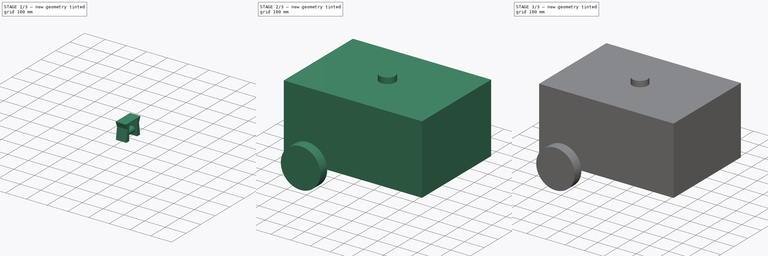
[diagram: build sequence overview — one tinted view per stage of 3, left to right]
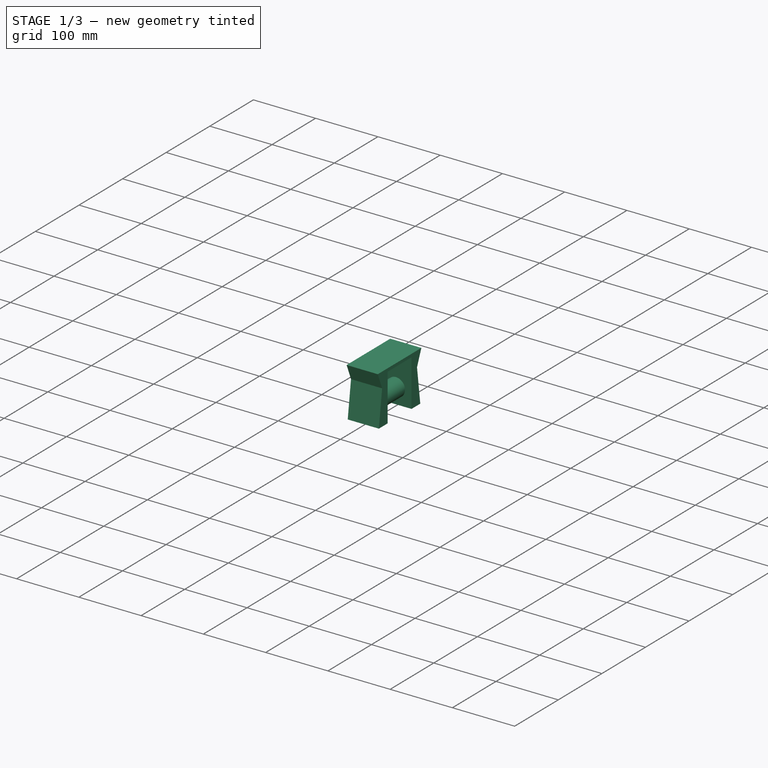
[diagram: stage 1 of 3 — iso view after this stage's code; geometry added in this stage tinted green]
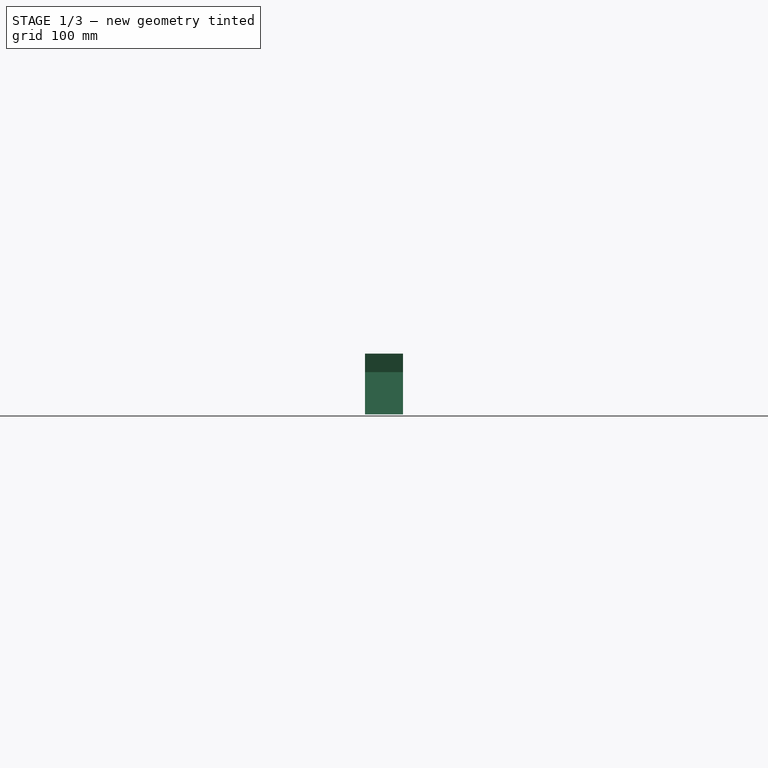
[diagram: stage 1 of 3 — front view after this stage's code; geometry added in this stage tinted green]
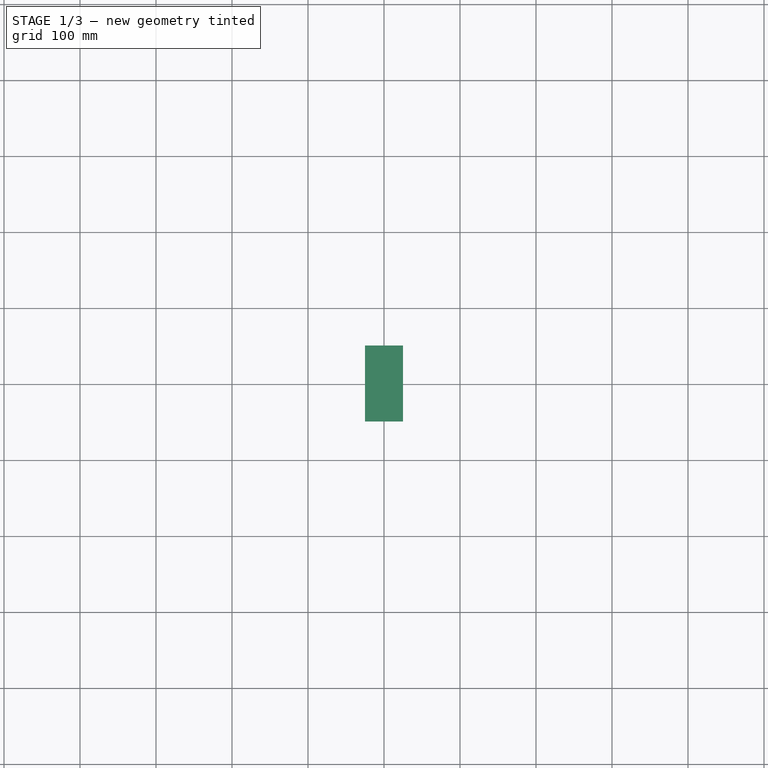
[diagram: stage 1 of 3 — top view after this stage's code; geometry added in this stage tinted green]
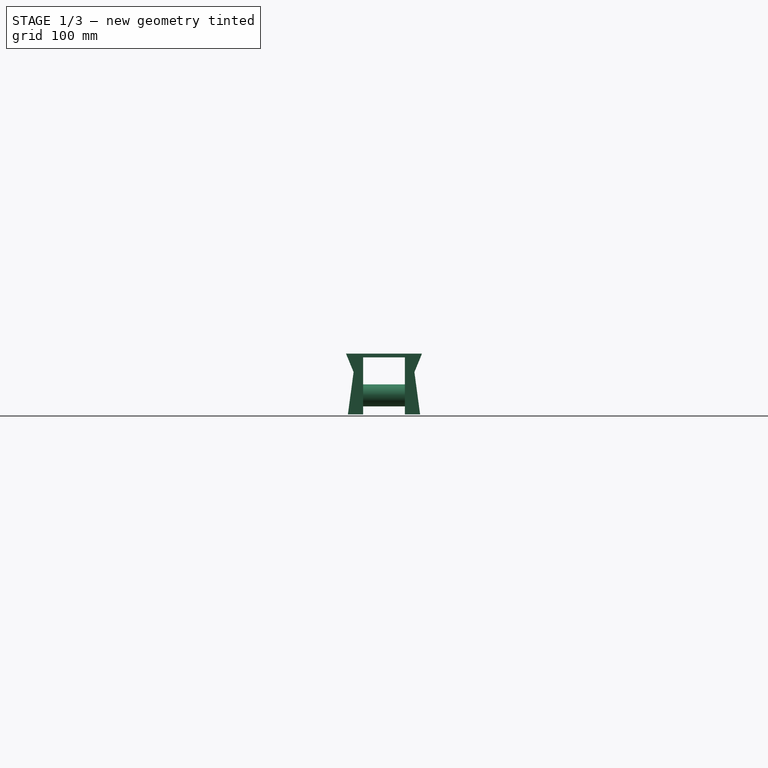
[diagram: stage 1 of 3 — right view after this stage's code; geometry added in this stage tinted green]
FCSTD DOCUMENT  (FreeCAD 0.19R24415 (Git))
Label: platypous
License: All rights reserved
LicenseURL: http://en.wikipedia.org/wiki/All_rights_reserved
objects: PartDesign::CoordinateSystem×8, Sketcher::SketchObject×6, PartDesign::Pad×6, App::Part×4, PartDesign::Body×3, App::DocumentObjectGroup×3, App::Link×3, PartDesign::Mirrored×1, App::FeaturePython×1
note: 30 computed .brp shape members not serialized (recipe doc carries the construction recipe); baked Part::Feature solids carry a one-line shape summary decoded from their .brp

FEATURE [PartDesign::Body] Body001  label="Wheel-body"
  Group = -> [Sketch003,Pad003]
  Origin = -> Origin003
  Tip = -> Pad003
FEATURE [PartDesign::CoordinateSystem] LCS_0
  AttacherType = Attacher::AttachEngine3D
  MapMode = 2
  Support = -> [X_Axis004]
FEATURE [PartDesign::CoordinateSystem] LCS_0001
  AttacherType = Attacher::AttachEngine3D
  MapMode = 2
  Support = -> [X_Axis005]
FEATURE [Sketcher::SketchObject] Sketch004
  FullyConstrained = true
  MapMode = 5
  Placement = pos=(0,0,0) rot=(0.57735,0.57735,0.57735;2.0944rad)
  Support = -> [YZ_Plane005]
  sketch-geometry (10):
    g0: LineSegment StartX=-50 StartY=42.5 StartZ=0 EndX=50 EndY=42.5 EndZ=0
    g1: LineSegment StartX=27.5 StartY=-37.5 StartZ=0 EndX=47.5 EndY=-37.5 EndZ=0
    g2: LineSegment StartX=27.5 StartY=-37.5 StartZ=0 EndX=27.5 EndY=37.5 EndZ=0
    g3: LineSegment StartX=27.5 StartY=37.5 StartZ=0 EndX=-27.5 EndY=37.5 EndZ=0
    g4: LineSegment StartX=-27.5 StartY=37.5 StartZ=0 EndX=-27.5 EndY=-37.5 EndZ=0
    g5: LineSegment StartX=50 StartY=42.5 StartZ=0 EndX=40 EndY=18.1465 EndZ=0
    g6: LineSegment StartX=40 StartY=18.1465 StartZ=0 EndX=47.5 EndY=-37.5 EndZ=0
    g7: LineSegment StartX=-50 StartY=42.5 StartZ=0 EndX=-40 EndY=18.1465 EndZ=0
    g8: LineSegment StartX=-40 StartY=18.1465 StartZ=0 EndX=-47.5 EndY=-37.5 EndZ=0
    g9: LineSegment StartX=-47.5 StartY=-37.5 StartZ=0 EndX=-27.5 EndY=-37.5 EndZ=0
  constraints (28):
    c: Horizontal(g1)
    c: DistanceY(g1,g0) = 80
    c: Coincident(g1,g2)
    c: Vertical(g2)
    c: Coincident(g2,g3)
    c: Horizontal(g3)
    c: Coincident(g3,g4)
    c: Vertical(g4)
    c: Equal(g4,g2)
    c: DistanceY(g4,g4) = 75
    c: DistanceX(g3,g3) = 55
    c: Coincident(g5,g0)
    c: Coincident(g6,g5)
    c: Coincident(g6,g1)
    c: Coincident(g0,g7)
    c: Coincident(g7,g8)
    c: Coincident(g8,g9)
    c: Coincident(g9,g4)
    c: Horizontal(g9)
    c: Equal(g9,g1)
    c: Angle(g7,g8) = 2.61799
    c: Angle(g6,g5) = 2.61799
    c: Symmetric(g2,g4,g-1)
    c: DistanceX(g0,g0) = 100
    c: DistanceX(g1,g1) = 20
    c: Symmetric(g0,g0,g-2)
    c: Equal(g8,g6)
    c: DistanceX(g7,g-1) = 40
FEATURE [PartDesign::Pad] Pad004
  Direction = (1,1,1)
  Length = 50
  Length2 = 100
  Midplane = true
  Placement = pos=(0,0,0) rot=(0.57735,0.57735,0.57735;2.0944rad)
  Profile = -> Sketch004
  Refine = true
  Type = 0
FEATURE [Sketcher::SketchObject] Sketch005
  ExternalGeometry = -> [Pad004]
  FullyConstrained = true
  MapMode = 5
  Placement = pos=(1.22e-14,27.5,-9.2e-15) rot=(-0.57735,-0.57735,0.57735;4.18879rad)
  Support = -> [Pad004]
  sketch-geometry (1):
    g0: Circle CenterX=12.5 CenterY=0 CenterZ=0 NormalX=0 NormalY=0 NormalZ=1 AngleXU=0 Radius=14.5
  constraints (3):
    c: PointOnObject(g0,g-1)
    c: Radius(g0) = 14.5
    c: Distance(g0,g-3) = 50
FEATURE [PartDesign::Pad] Pad005
  BaseFeature = -> Pad004
  Direction = (1,1,1)
  Length = 10
  Length2 = 100
  Placement = pos=(0,0,0) rot=(0.57735,0.57735,0.57735;2.0944rad)
  Profile = -> Sketch005
  Refine = true
  Type = 2
FEATURE [PartDesign::Body] Wheel_holder
  Group = -> [LCS_0001,Sketch004,Pad004,Sketch005,Pad005]
  Origin = -> Origin005
  Tip = -> Pad005
FEATURE [PartDesign::CoordinateSystem] body_connection  label="body-connection"
  AttacherType = Attacher::AttachEngine3D
  MapMode = 45
  Placement = pos=(-3.69e-14,2.36e-14,42.5) rot=(0,0,1;0rad)
  Support = -> [Pad005]
FEATURE [PartDesign::CoordinateSystem] LCS_Origin
  AttacherType = Attacher::AttachEngine3D
  MapMode = 2
  Support = -> [X_Axis006]
FEATURE [App::FeaturePython] Variables  # WARN: FeaturePython — macro-defined, semantics opaque (R4)
  Type = App::PropertyContainer
FEATURE [App::DocumentObjectGroup] Constraints
FEATURE [App::DocumentObjectGroup] Configurations
FEATURE [PartDesign::CoordinateSystem] LCS_1
  AttacherType = Attacher::AttachEngine3D
  AttachmentOffset = pos=(0,0,0) rot=(0,0,-1;1.5708rad)
  MapMode = 45
  Placement = pos=(0,-1.17e-14,0) rot=(0,0,1;0rad)
  Support = -> [Mirrored]
FEATURE [PartDesign::CoordinateSystem] Wheel_connection  label="Wheel-connection"
  AttacherType = Attacher::AttachEngine3D
  AttachmentOffset = pos=(0,-200,0) rot=(0,0,-1;1.5708rad)
  MapMode = 45
  Placement = pos=(200,-5.61e-14,0) rot=(0,0,1;0rad)
  Support = -> [Mirrored]
FEATURE [App::Part] Part  label="Platy-part"
  Group = -> [Body,LCS_1,Wheel_connection]
  Origin = -> Origin001
FEATURE [App::Link] Platy_part  label="Platy-part001"
  AssemblyType = Part::Link
  AttachedBy = #LCS_1
  AttachedTo = Parent Assembly#LCS_Origin
  LinkPlacement = pos=(0,1.17e-14,0) rot=(0,0,1;0rad)
  LinkedObject = -> Part
  Placement = pos=(0,1.17e-14,0) rot=(0,0,1;0rad)
  SolverId = Asm4EE
  expr: Placement = LCS_Origin.Placement * AttachmentOffset * LCS_1.Placement ^ -1
FEATURE [PartDesign::CoordinateSystem] wheel_center  label="wheel-center"
  AttacherType = Attacher::AttachEngine3D
  AttachmentOffset = pos=(0,0,0) rot=(-0.707107,0,-0.707107;3.14159rad)
  MapMode = 45
  Placement = pos=(7.01e-14,0,-5e-16) rot=(0,0,1;0rad)
  Support = -> [Pad003]
FEATURE [App::Part] Part001  label="Wheel"
  Group = -> [Body001,wheel_center]
  Origin = -> Origin002
FEATURE [PartDesign::CoordinateSystem] wheel_connection  label="wheel-connection"
  AttacherType = Attacher::AttachEngine3D
  AttachmentOffset = pos=(0,0,0) rot=(0,0.707107,0.707107;3.14159rad)
  MapMode = 45
  Placement = pos=(-1e-15,-9.3e-15,-12.5) rot=(0,0,1;0rad)
  Support = -> [Pad005]
FEATURE [App::Part] Wheel_Holder
  Group = -> [LCS_0,Wheel_holder,body_connection,wheel_connection]
  Origin = -> Origin004
FEATURE [App::DocumentObjectGroup] Parts
  Group = -> [Part,Part001,Wheel_Holder]
FEATURE [App::Link] Wheel_Holder001
  AssemblyType = Part::Link
  AttachedBy = #body_connection
  AttachedTo = Platy_part#Wheel_connection
  LinkPlacement = pos=(200,-6.81e-14,-42.5) rot=(0,0,1;0rad)
  LinkedObject = -> Wheel_Holder
  Placement = pos=(200,-6.81e-14,-42.5) rot=(0,0,1;0rad)
  SolverId = Asm4EE
  expr: Placement = Platy_part.Placement * Wheel_connection.Placement * AttachmentOffset * body_connection.Placement ^ -1
FEATURE [App::Link] Wheel  label="Wheel001"
  AssemblyType = Part::Link
  AttachedBy = #wheel_center
  AttachedTo = Wheel_Holder001#wheel_connection
  LinkPlacement = pos=(200,-8.85e-14,-55) rot=(0,0,1;0rad)
  LinkedObject = -> Part001
  Placement = pos=(200,-8.85e-14,-55) rot=(0,0,1;0rad)
  SolverId = Asm4EE
  expr: Placement = Wheel_Holder001.Placement * wheel_connection.Placement * AttachmentOffset * wheel_center.Placement ^ -1
FEATURE [App::Part] Assembly
  AssemblyType = Part::Link
  Group = -> [LCS_Origin,Variables,Constraints,Configurations,Platy_part,Wheel_Holder001,Wheel]
  Origin = -> Origin006
  Type = Assembly
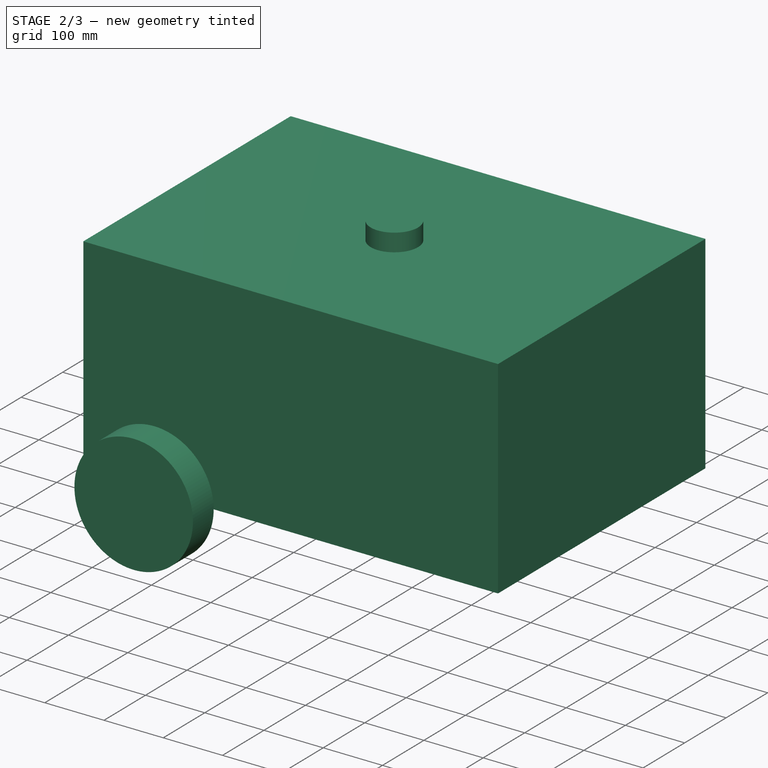
[diagram: stage 2 of 3 — iso view after this stage's code; geometry added in this stage tinted green]
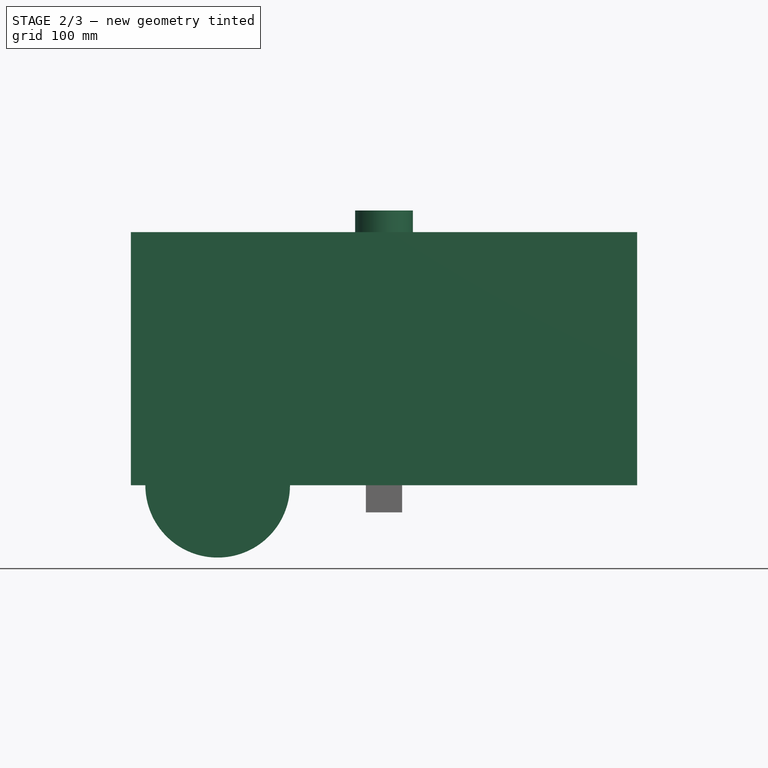
[diagram: stage 2 of 3 — front view after this stage's code; geometry added in this stage tinted green]
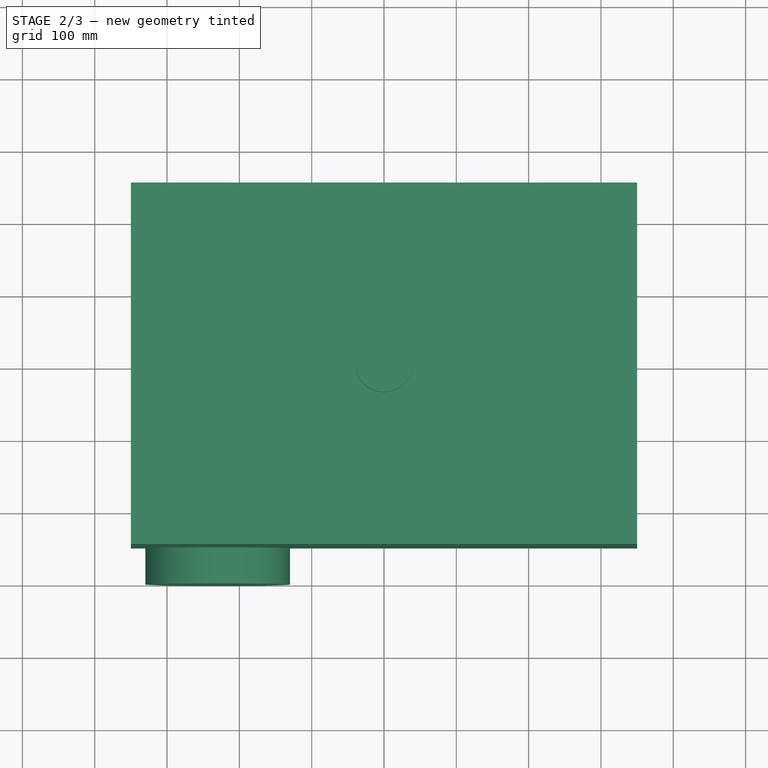
[diagram: stage 2 of 3 — top view after this stage's code; geometry added in this stage tinted green]
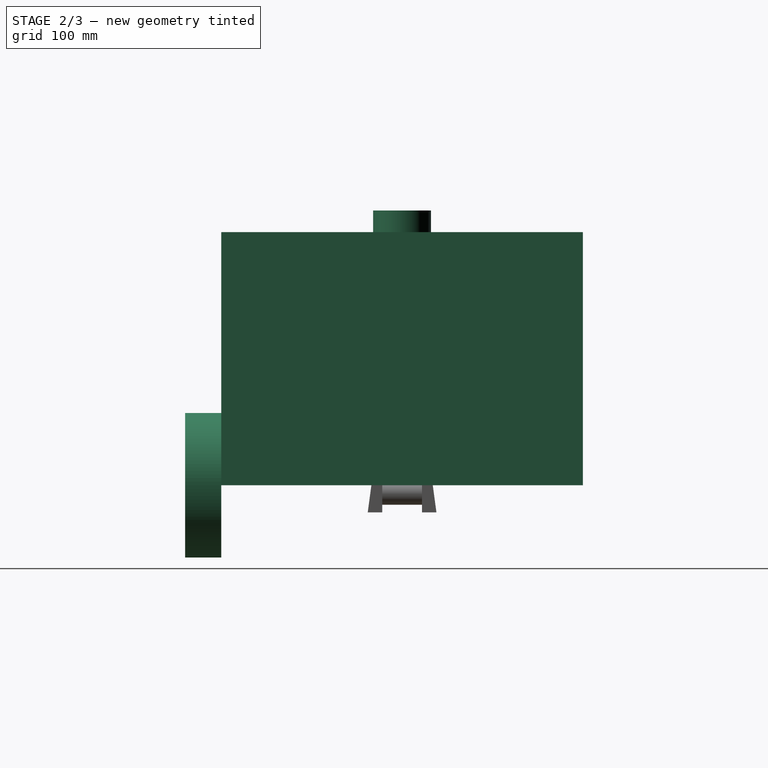
[diagram: stage 2 of 3 — right view after this stage's code; geometry added in this stage tinted green]
FEATURE [Sketcher::SketchObject] Sketch
  FullyConstrained = true
  MapMode = 5
  Support = -> [XY_Plane]
  sketch-geometry (4):
    g0: LineSegment StartX=-350 StartY=250 StartZ=0 EndX=350 EndY=250 EndZ=0
    g1: LineSegment StartX=350 StartY=250 StartZ=0 EndX=350 EndY=-250 EndZ=0
    g2: LineSegment StartX=350 StartY=-250 StartZ=0 EndX=-350 EndY=-250 EndZ=0
    g3: LineSegment StartX=-350 StartY=-250 StartZ=0 EndX=-350 EndY=250 EndZ=0
  constraints (11):
    c: Coincident(g0,g1)
    c: Coincident(g1,g2)
    c: Coincident(g2,g3)
    c: Coincident(g3,g0)
    c: Horizontal(g0)
    c: Horizontal(g2)
    c: Vertical(g1)
    c: Vertical(g3)
    c: Symmetric(g0,g1,g-1)
    c: DistanceX(g2,g2) = 700
    c: DistanceY(g1,g1) = 500
FEATURE [PartDesign::Pad] Pad
  Direction = (1,1,1)
  Length = 350
  Length2 = 100
  Profile = -> Sketch
  Refine = true
  Type = 0
FEATURE [Sketcher::SketchObject] Sketch001
  FullyConstrained = true
  MapMode = 5
  Placement = pos=(0,0,350) rot=(0,0,1;0rad)
  Support = -> [Pad]
  sketch-geometry (1):
    g0: Circle CenterX=0 CenterY=0 CenterZ=0 NormalX=0 NormalY=0 NormalZ=1 AngleXU=0 Radius=40
  constraints (2):
    c: Coincident(g0,g-1)
    c: Radius(g0) = 40
FEATURE [PartDesign::Pad] Pad001
  BaseFeature = -> Pad
  Direction = (1,1,1)
  Length = 30
  Length2 = 100
  Profile = -> Sketch001
  Refine = true
  Type = 0
FEATURE [Sketcher::SketchObject] Sketch002
  ExternalGeometry = -> [Pad001]
  FullyConstrained = true
  MapMode = 5
  Placement = pos=(0,-250,0) rot=(1,0,0;1.5708rad)
  Support = -> [Pad001]
  sketch-geometry (1):
    g0: Circle CenterX=-230 CenterY=0 CenterZ=0 NormalX=0 NormalY=0 NormalZ=1 AngleXU=0 Radius=100
  constraints (3):
    c: PointOnObject(g0,g-3)
    c: Radius(g0) = 100
    c: DistanceX(g0,g-1) = 230
FEATURE [PartDesign::Pad] Pad002
  BaseFeature = -> Pad001
  Direction = (1,1,1)
  Length = 50
  Length2 = 100
  Profile = -> Sketch002
  Refine = true
  Type = 0
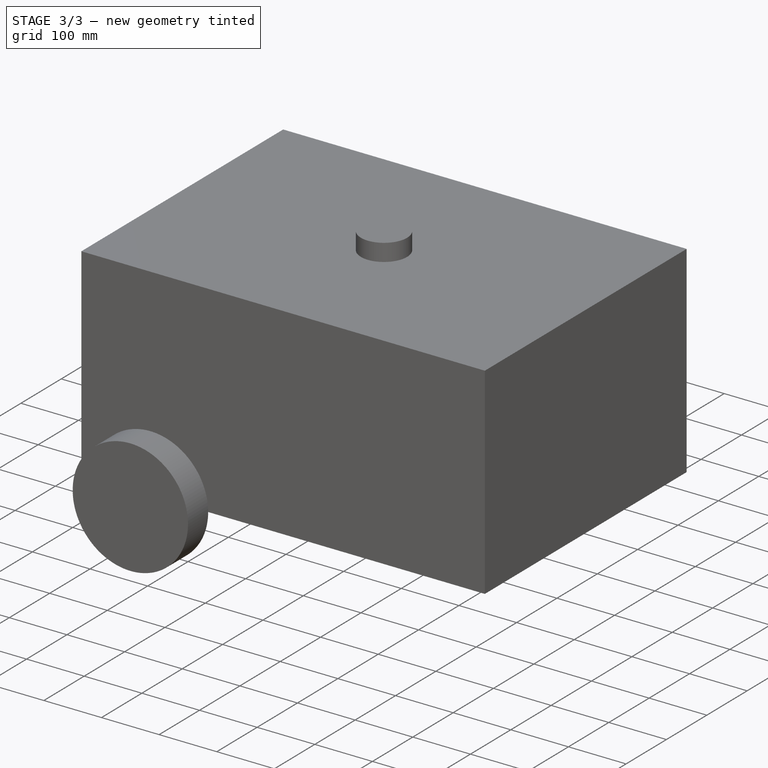
[diagram: stage 3 of 3 — iso view after this stage's code; geometry added in this stage tinted green]
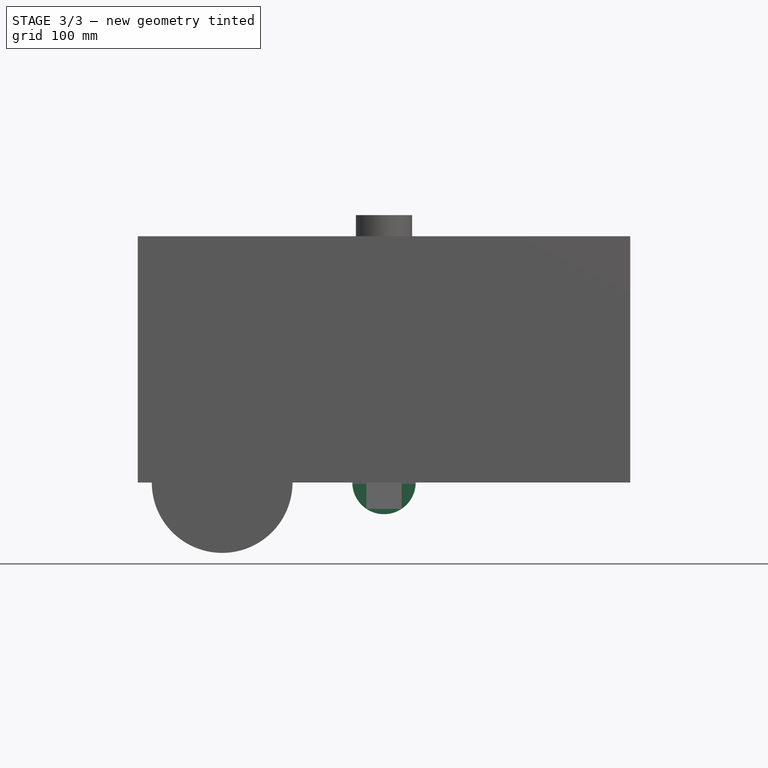
[diagram: stage 3 of 3 — front view after this stage's code; geometry added in this stage tinted green]
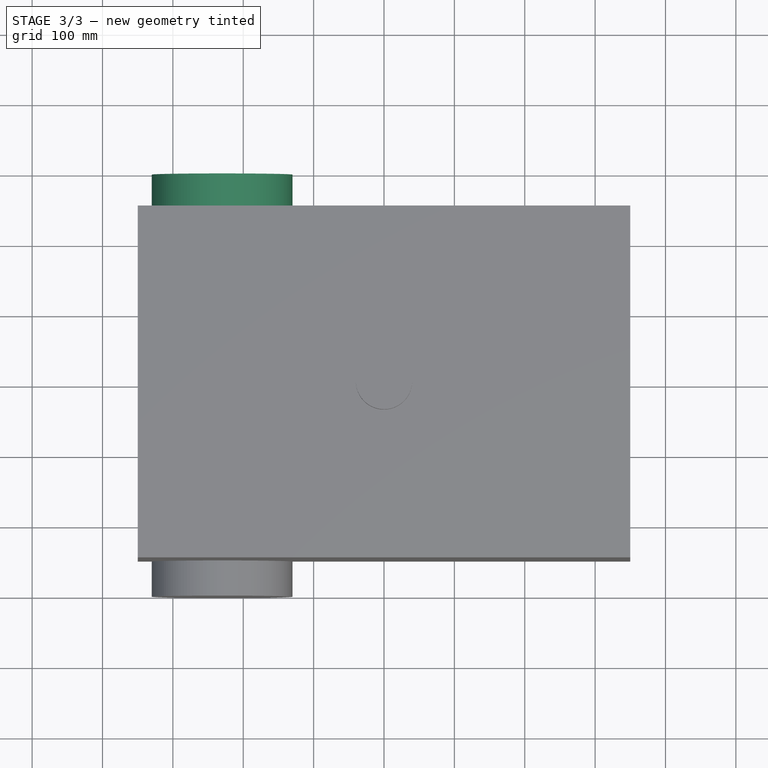
[diagram: stage 3 of 3 — top view after this stage's code; geometry added in this stage tinted green]
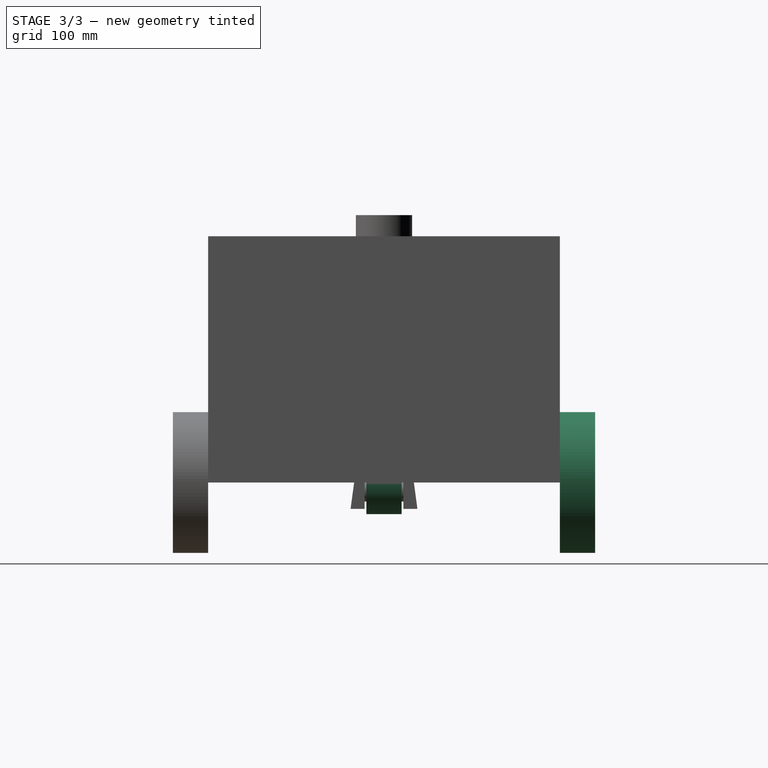
[diagram: stage 3 of 3 — right view after this stage's code; geometry added in this stage tinted green]
FEATURE [PartDesign::Mirrored] Mirrored
  BaseFeature = -> Pad002
  MirrorPlane = -> XZ_Plane
  Originals = -> [Pad002]
  Refine = true
FEATURE [PartDesign::Body] Body  label="Plataypus"
  Group = -> [Sketch,Pad,Sketch001,Pad001,Sketch002,Pad002,Mirrored]
  Origin = -> Origin
  Tip = -> Mirrored
FEATURE [Sketcher::SketchObject] Sketch003
  FullyConstrained = true
  MapMode = 5
  Placement = pos=(0,0,0) rot=(1,0,0;1.5708rad)
  Support = -> [XZ_Plane003]
  sketch-geometry (2):
    g0: Circle CenterX=0 CenterY=0 CenterZ=0 NormalX=0 NormalY=0 NormalZ=1 AngleXU=0 Radius=45
    g1: Circle CenterX=0 CenterY=0 CenterZ=0 NormalX=0 NormalY=0 NormalZ=1 AngleXU=0 Radius=15
  constraints (4):
    c: Coincident(g0,g-1)
    c: Radius(g0) = 45
    c: Coincident(g1,g0)
    c: Radius(g1) = 15
FEATURE [PartDesign::Pad] Pad003
  Direction = (1,1,1)
  Length = 50
  Length2 = 100
  Midplane = true
  Placement = pos=(0,0,0) rot=(1,0,0;1.5708rad)
  Profile = -> Sketch003
  Refine = true
  Type = 0
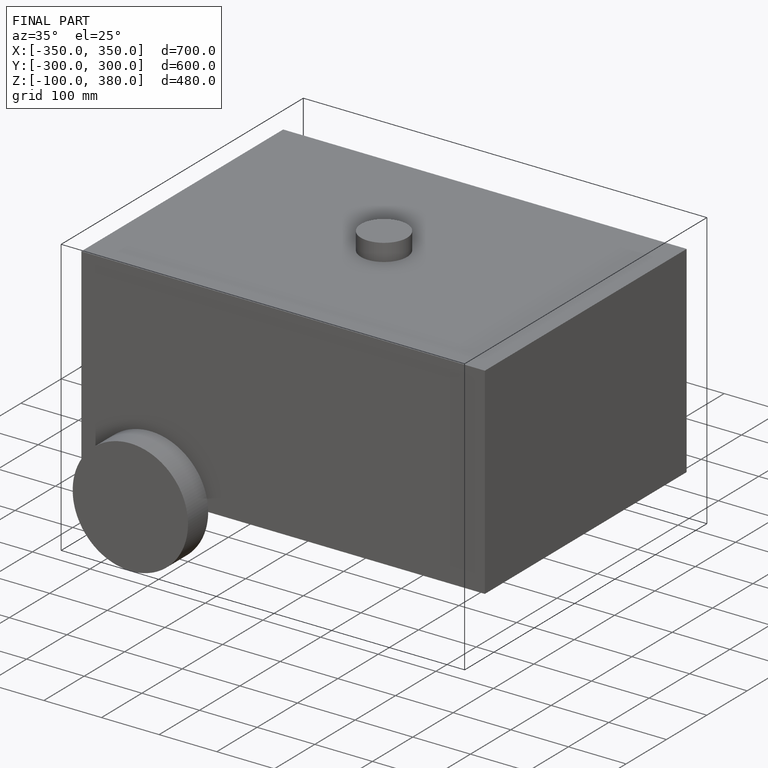
[diagram: finished part — iso view with bounding-box wireframe]
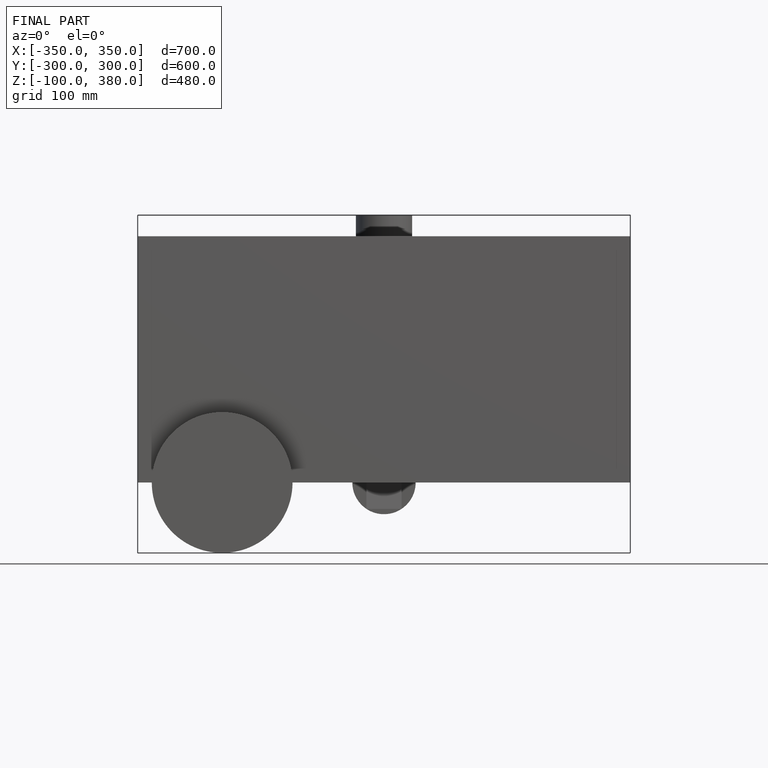
[diagram: finished part — front view with bounding-box wireframe]
